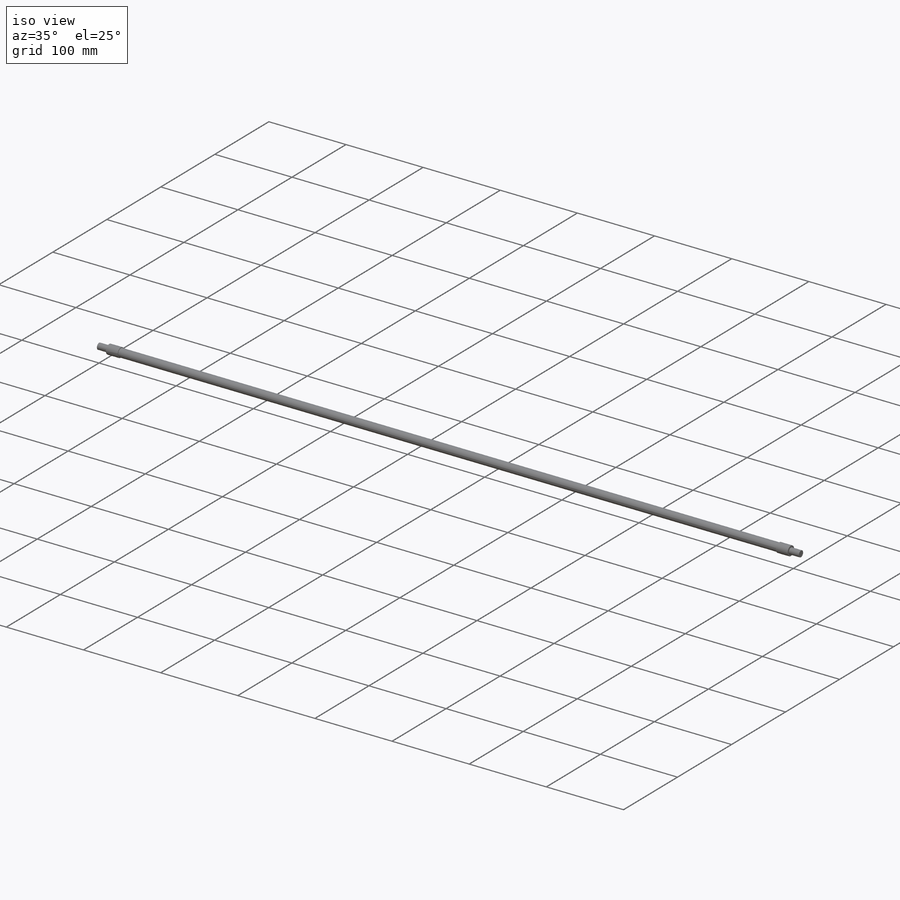
[diagram: iso view]
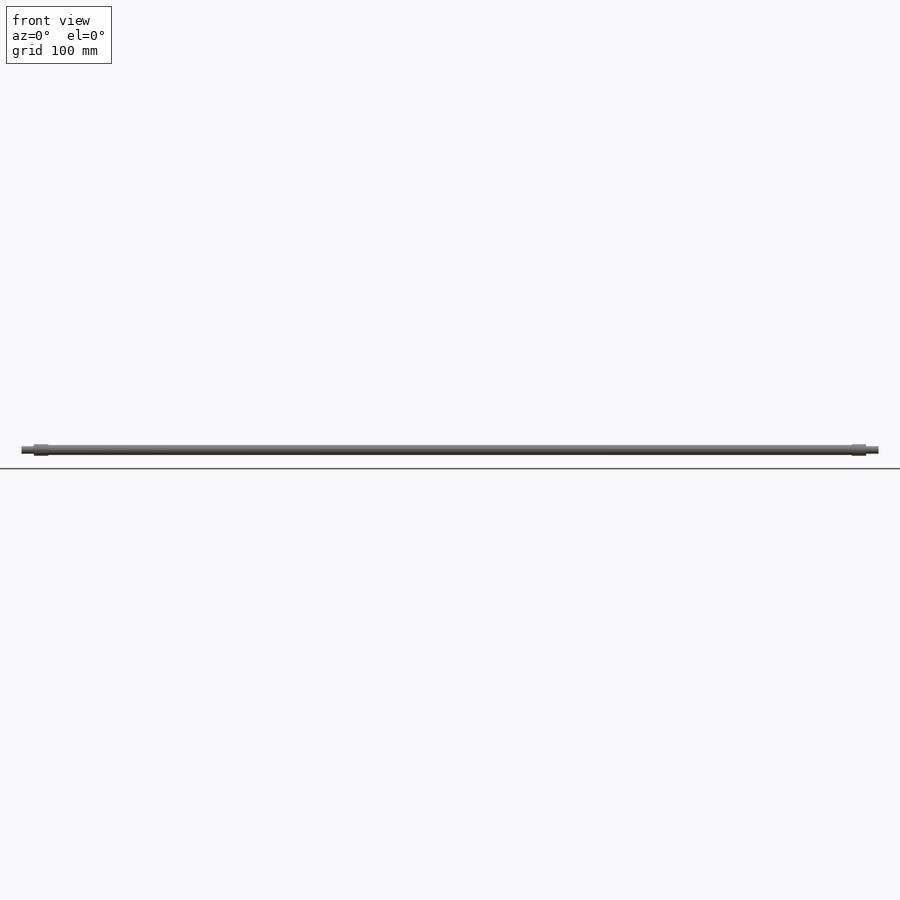
[diagram: front view]
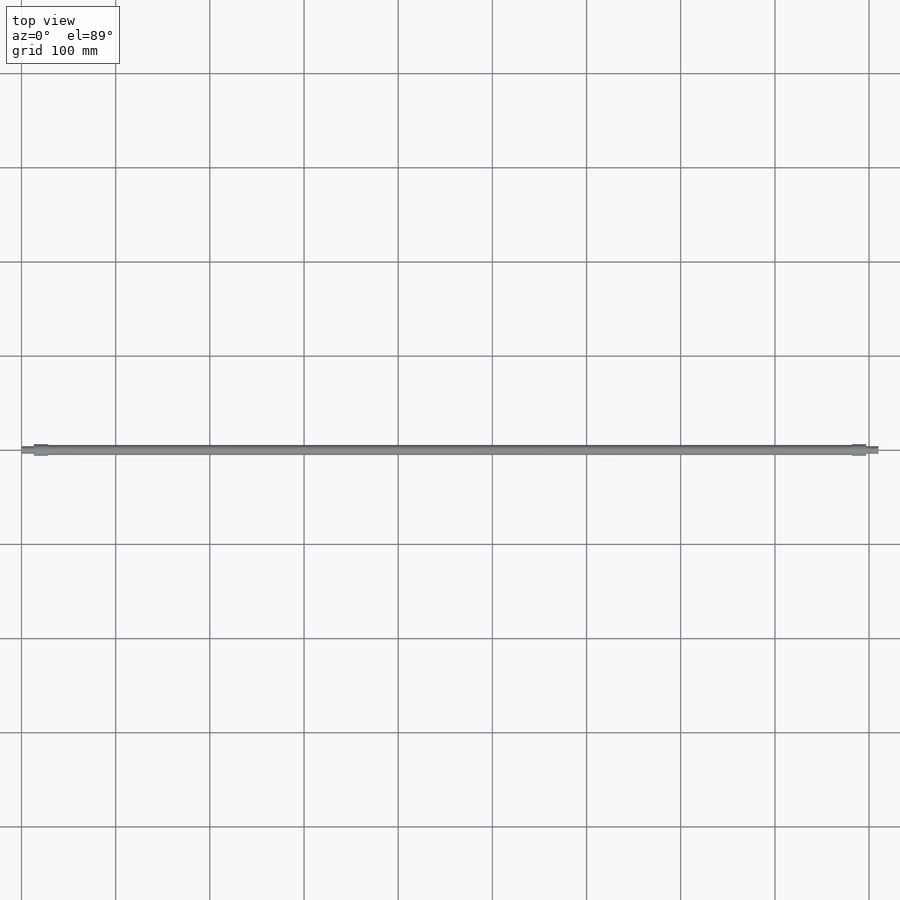
[diagram: top view]
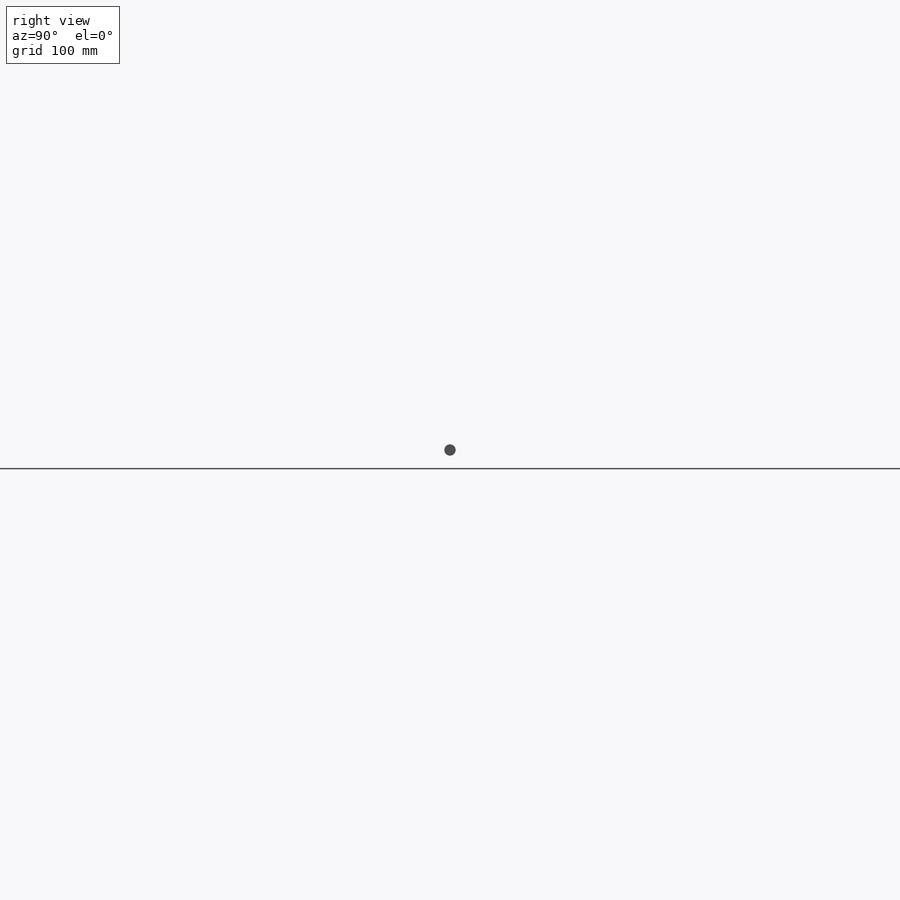
[diagram: right view]
SOLIDWORKS PART (.sldprt)
format: sldprt  version: not decoded by parser v0  size: 177,664 bytes
history: native  units: mm
features: sketch x4, cut_extrude x2, material x1, revolve x1, fillet x1, extrude x1, plane x1, mirror x1 (+13 scaffold rows collapsed)
feature tree (25):
  scaffold x13  (default folders/planes/origin — collapsed)
  material  "Material <not specified>"
  sketch  "Sketch3"  dims[D1=28.4mm D2=13.1mm D3=6.05mm D4=3.95mm]
  revolve  "Revolve1"  Angle=360deg
  fillet  "Fillet1"  Radius=0.4mm
  sketch  "Sketch6"  dims[D1=10.5mm]
  extrude  "Boss-Extrude1"  Depth=853.2mm
  plane  "Plane1"  Offset=426.6mm
  mirror  "Mirror1"
  sketch  "Sketch7"  dims[D1=6.35mm]
  cut_extrude  "Cut-Extrude1"  Depth=0.2mm
  sketch  "Sketch9"  dims[D1=6.35mm]
  cut_extrude  "Cut-Extrude2"  Depth=0.2mm
decode coverage: 9 of 10 modeling features carry decoded parameters
note: suppression state not decoded; provenance and decode notes live in map.json
